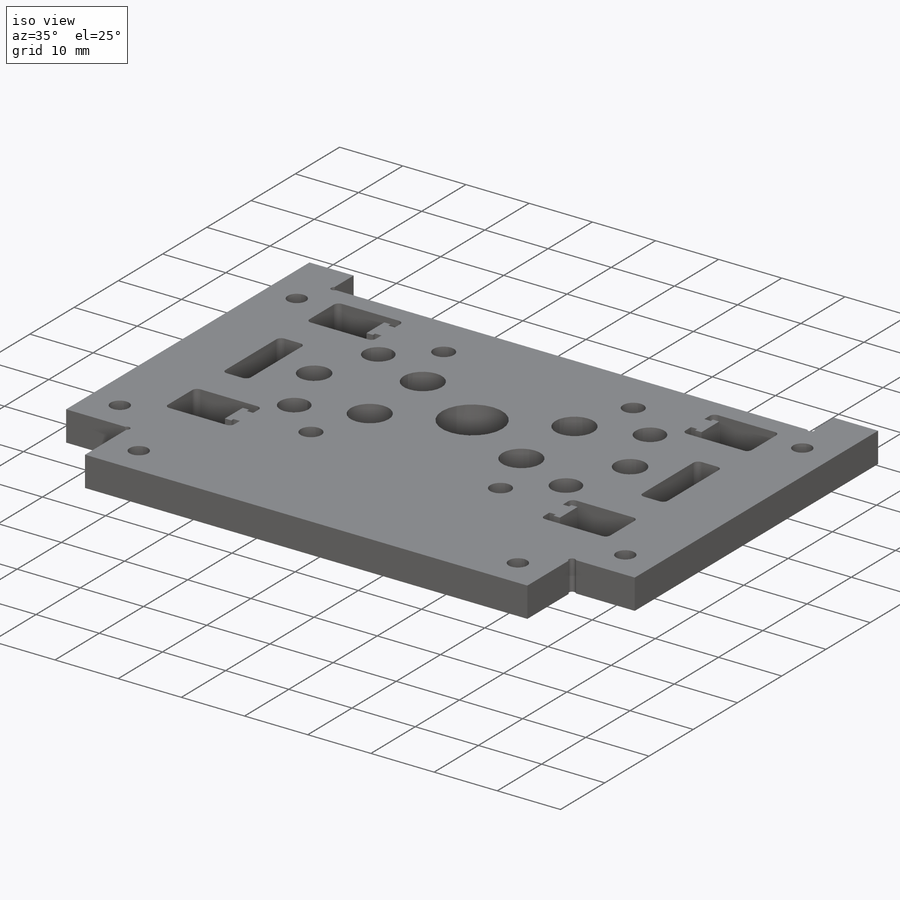
[diagram: iso view]
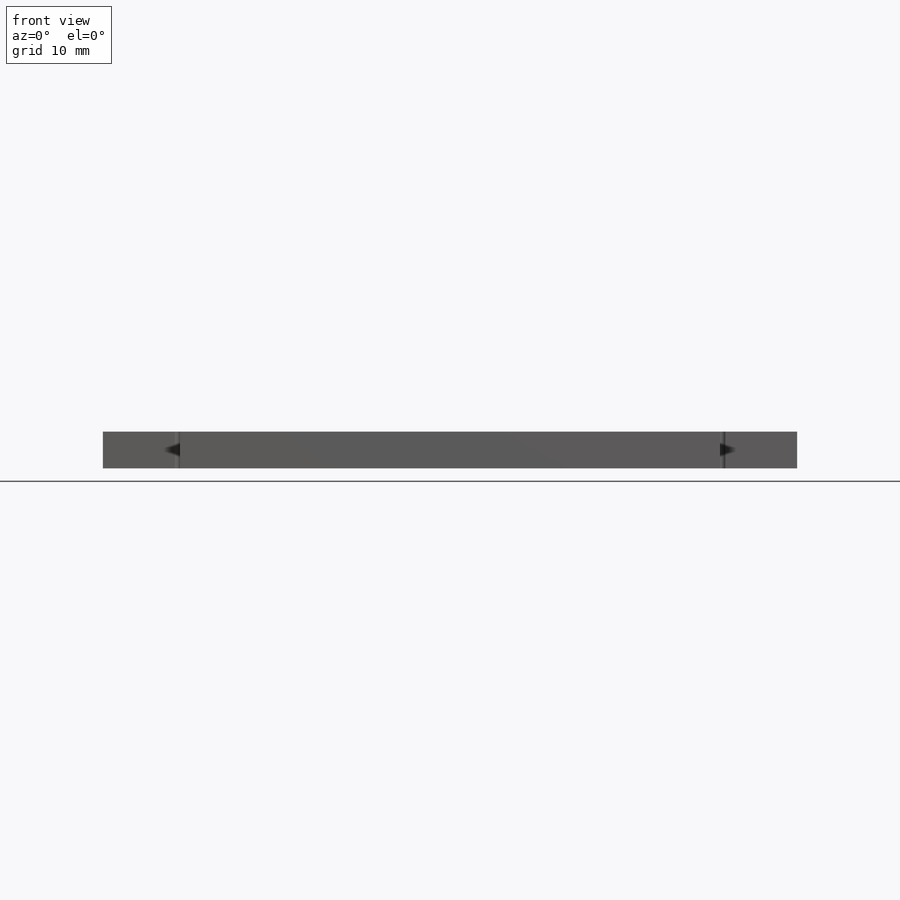
[diagram: front view]
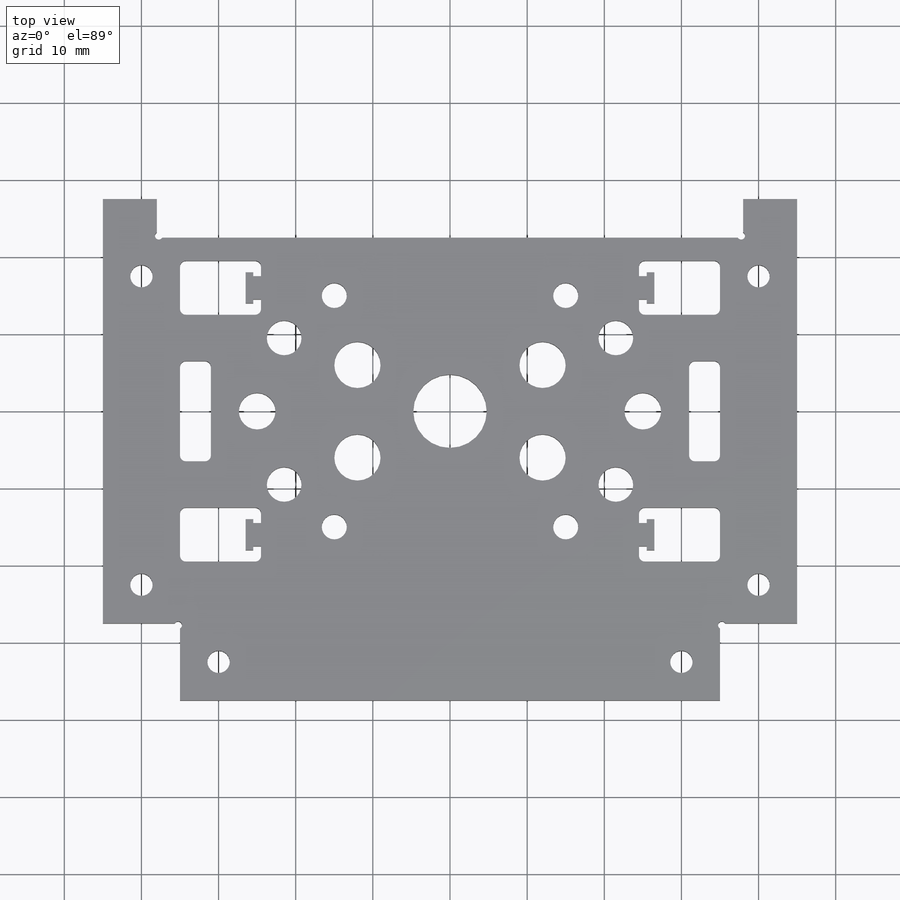
[diagram: top view]
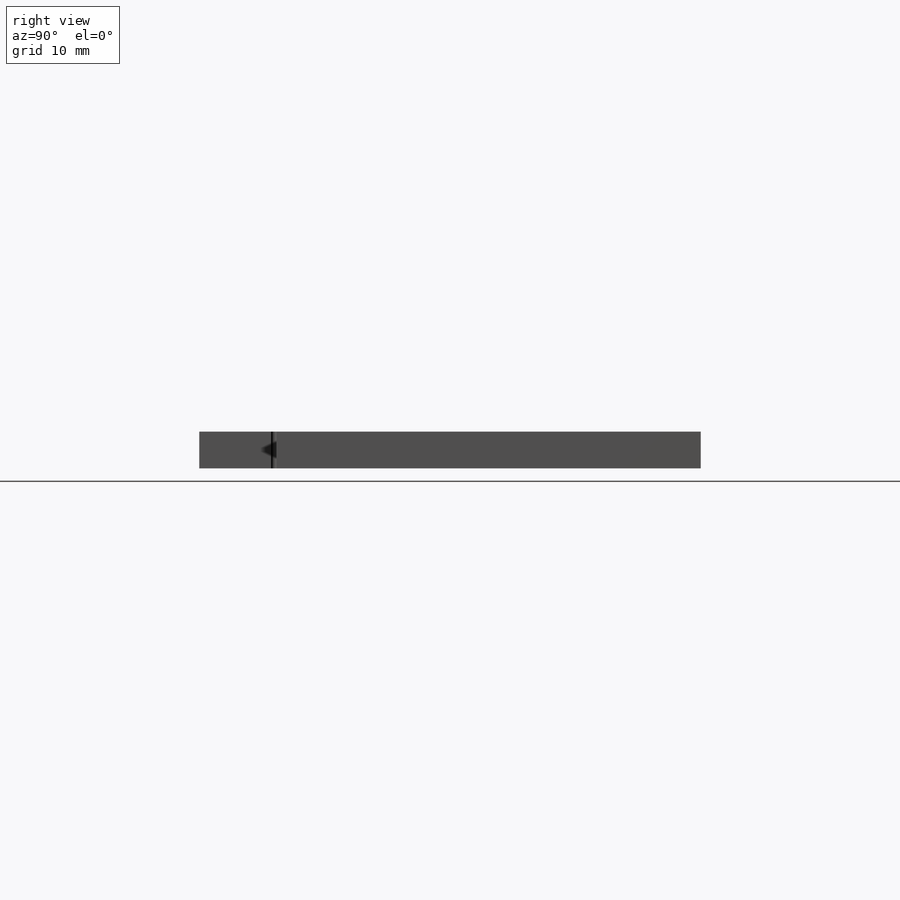
[diagram: right view]
SOLIDWORKS PART (.sldprt)
format: sldprt  version: not decoded by parser v0  size: 402,944 bytes
history: native  units: mm
features: sketch x4, mirror x3, extrude x2, cut_extrude x2, material x1, fillet x1 (+16 scaffold rows collapsed)
feature tree (29):
  scaffold x16  (default folders/planes/origin — collapsed)
  material  "Material <not specified>"
  sketch  "Sketch1"  dims[c1.D1=4.7625mm c1.D3=4.75mm c1.D6=3.25mm c1.D14=6.0mm c1.D2=50.0mm c1.D4=25.0mm c1.D5=45.0mm c1.D7=25.0mm c1.D8=4.0mm c1.D9=4.0mm c2.D2=27.0mm c2.D10=55.0mm c2.D8=7.0mm c2.D11=5.0mm c2.D7=15.0mm c2.D9=6.0mm c2.D12=12.0mm c2.D13=6.0mm c3.D2=28.0mm]
  extrude  "Boss-Extrude1"  Depth=4.7625mm
  mirror  "Mirror1"
  sketch  "Sketch2"  dims[D1=10.0mm D2=10.0mm D3=10.0mm]
  extrude  "Boss-Extrude2"  [1 undecoded]
  sketch  "Sketch3"  dims[D5=2.9mm D8=1.0mm D1=40.0mm D2=5.0mm D3=5.0mm D4=60.0mm D6=5.0mm D7=10.0mm D9=0.25mm D10=0.25mm D11=0.25mm D12=0.25mm D13=0.25mm D14=0.25mm]
  cut_extrude  "Cut-Extrude1"  [1 undecoded]
  sketch  "Sketch4"  dims[c1.D9=4.5mm c1.D1=25.0mm c1.D2=16.0mm c1.D3=6.0mm c1.D4=1.0mm c1.D5=1.0mm c1.D6=3.0mm c1.D7=4.0mm c1.D8=7.0mm c1.D10=9.5mm c1.D11=21.5mm c2.D3=10.0mm c2.D12=6.0mm c2.D13=4.0mm]
  cut_extrude  "Cut-Extrude2"  [1 undecoded]
  fillet  "Fillet1"  Radius=0.75mm
  mirror  "Mirror2"
  mirror  "Mirror3"
decode coverage: 6 of 12 modeling features carry decoded parameters
note: 3 parameter values undecoded
summary: no parameter record found for 3 features
note: suppression state not decoded; provenance and decode notes live in map.json
